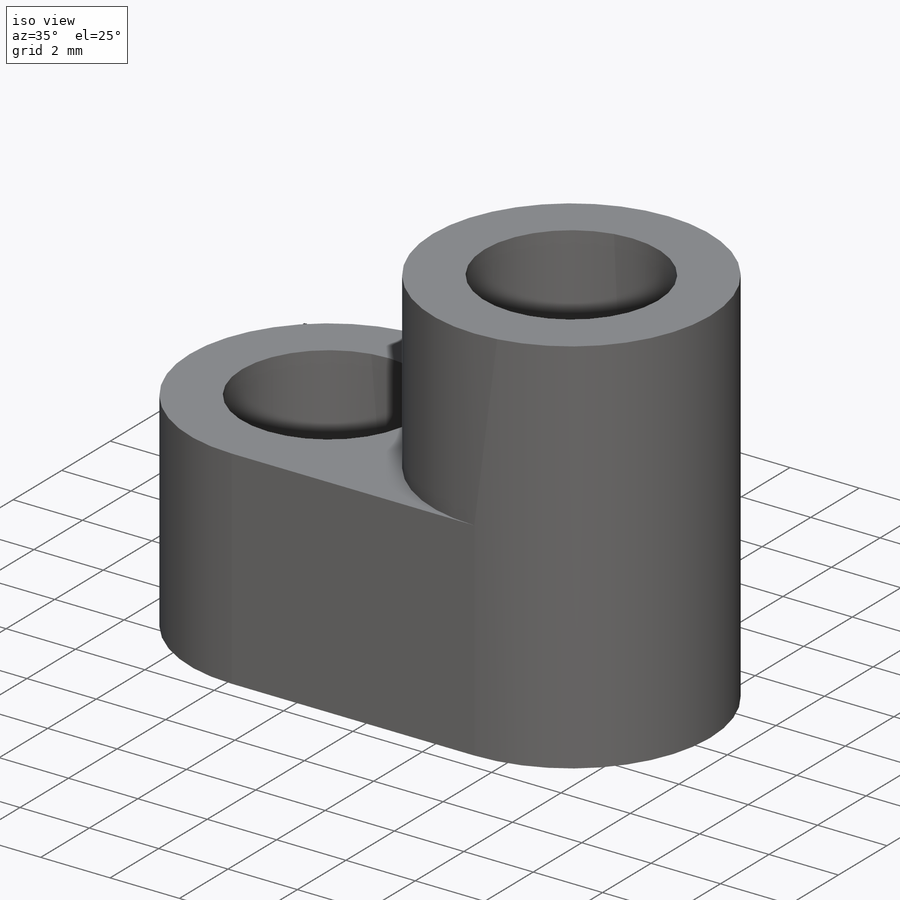
[diagram: iso view]
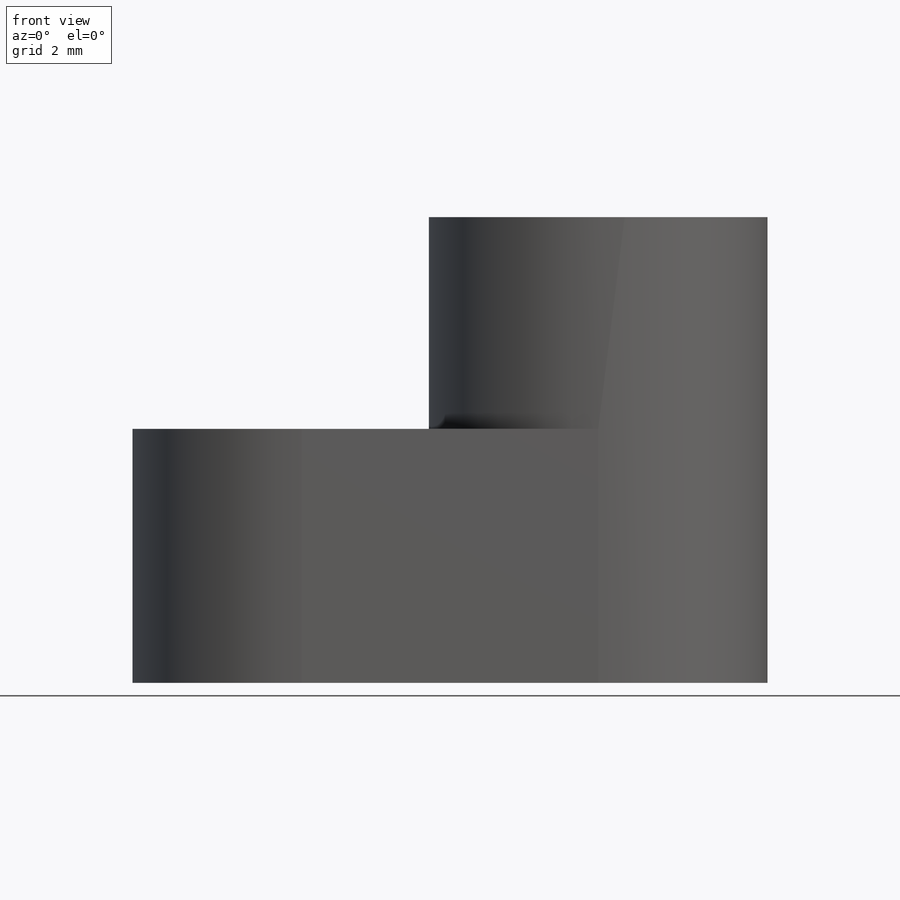
[diagram: front view]
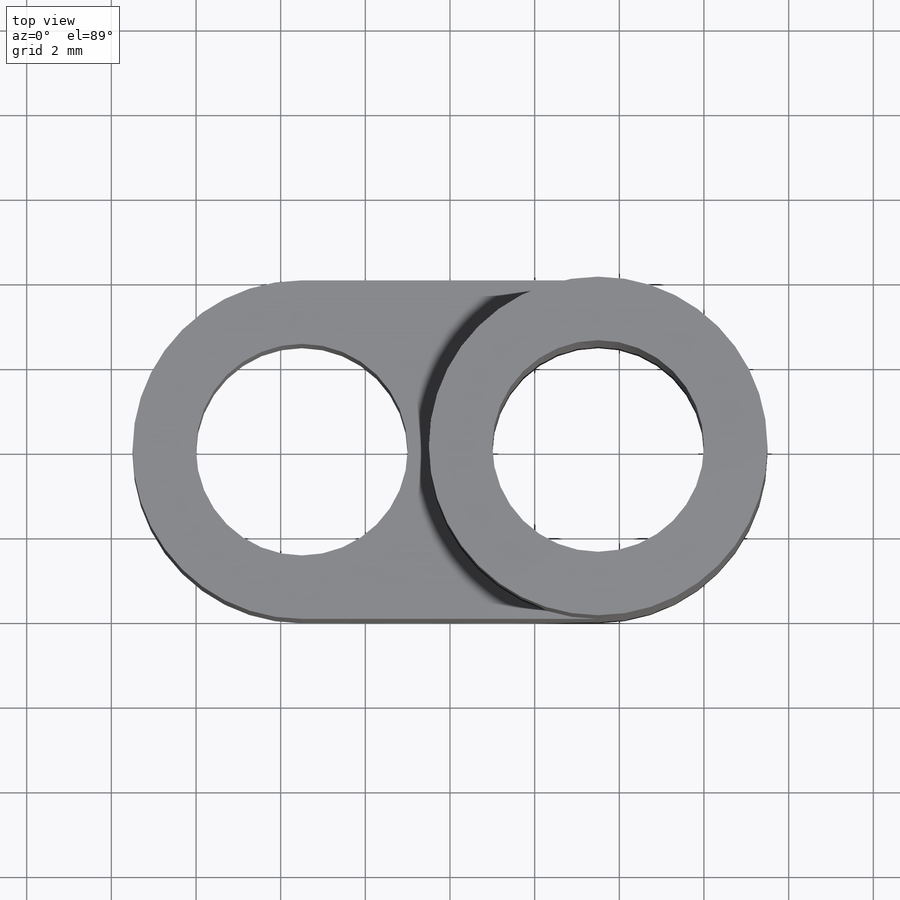
[diagram: top view]
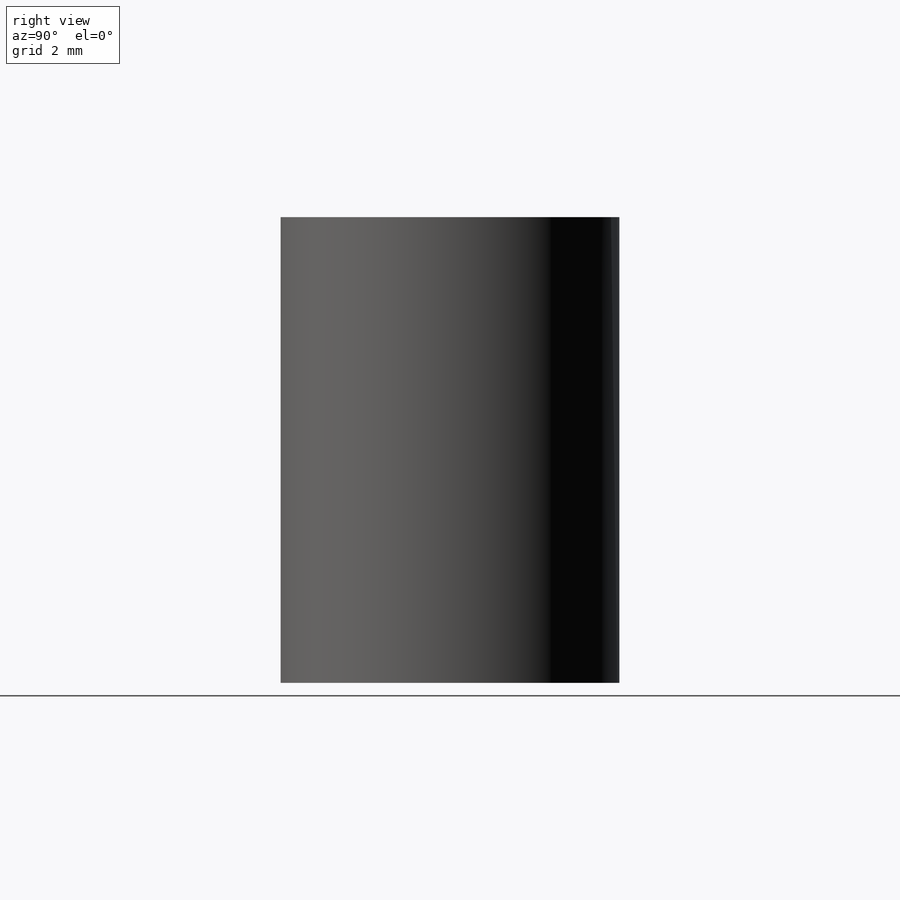
[diagram: right view]
SOLIDWORKS PART (.sldprt)
format: sldprt  version: not decoded by parser v0  size: 154,112 bytes
history: native  units: mm
features: sketch x3, extrude x2, material x1, fillet x1, cut_extrude x1 (+12 scaffold rows collapsed)
feature tree (20):
  scaffold x12  (default folders/planes/origin — collapsed)
  material  "Material <not specified>"
  sketch  "Sketch1"  dims[c1.D1=~31.174939mm c1.D2=5.0mm c1.D3=5.0mm c1.D5=5.0mm c2.D1=13.0mm c2.D4=8.0mm c2.D5=6.0mm c2.D6=3.5mm c3.D1=15.0mm c3.D2=3.5mm c3.D3=3.5mm]
  extrude  "Boss-Extrude1"  Depth=6mm
  fillet  "Fillet1"  Radius=4mm
  sketch  "Sketch2"  dims[D1=1.5mm]
  extrude  "Boss-Extrude2"  Depth=5mm
  sketch  "Sketch4"
  cut_extrude  "Cut-Extrude1"  Depth=25mm
decode coverage: 6 of 7 modeling features carry decoded parameters
note: ~ marks probable driven/reference dimensions
note: suppression state not decoded; provenance and decode notes live in map.json
